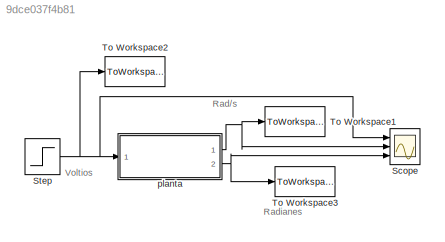
MODEL slx_9dce037f4b81
KIND model
CONFIG AbsTol = auto
CONFIG EnableMultiTasking = on
CONFIG FixedStep = auto
CONFIG InitFcn = %% Declaración de variables para sistema dinámico rotacional accionado por motor, conectado a través de banda elástica. \n% Como referencia se pueden ver las dos fuentes a continuación:\n% Ver: http://ctms.engin.umich.edu/CTMS/index.php?example=MotorSpeed&section=SystemModeling\n% Ver: https://www.researchgate.net/profile/Ibraheem_Ibraheem3/post/Experiments_are_presented_assuming_nonlinear_friction_h...<+1962ch>
CONFIG MaxStep = auto
CONFIG MinStep = auto
CONFIG RelTol = 1e-3
CONFIG SampleTimeConstraint = Unconstrained
CONFIG SolverName = ode45
CONFIG StartTime = 0.0
CONFIG StopTime = 2.8
BLOCK [Scope] Scope
  Floating = off
  NumInputPorts = 3
  Ports = [3]
  ScopeSpecificationString = Simulink.scopes.TimeScopeBlockCfg('CurrentConfiguration', extmgr.ConfigurationSet(extmgr.Configuration('Core','General UI',true),extmgr.Configuration('Core','Source UI',true),extmgr.Configuration('Sources','WiredSimulink',true,'DataLoggingMaxPoints','5000000','DataLoggingLimitDataPoints',true,'DataLoggingSaveFormat','Array','DataLoggingDecimation','1','DataLoggingDecimateData',true),extmgr.Configu...<+3406ch>
BLOCK [Step] Step
  After = 3
  SampleTime = 0
BLOCK [ToWorkspace] To Workspace1
  FixptAsFi = on
  MaxDataPoints = inf
  Ports = [1]
  SampleTime = -1
  SaveFormat = Timeseries
  VariableName = Velocidad01
BLOCK [ToWorkspace] To Workspace2
  FixptAsFi = on
  MaxDataPoints = inf
  Ports = [1]
  SampleTime = -1
  SaveFormat = Timeseries
  VariableName = voltaje01
BLOCK [ToWorkspace] To Workspace3
  FixptAsFi = on
  MaxDataPoints = inf
  Ports = [1]
  SampleTime = -1
  SaveFormat = Timeseries
  VariableName = Posicion01
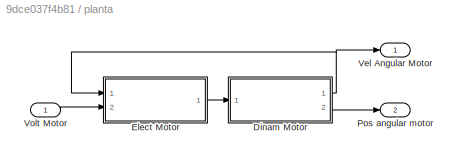
BLOCK [SubSystem] planta
  Ports = [1, 2]
  RequestExecContextInheritance = off
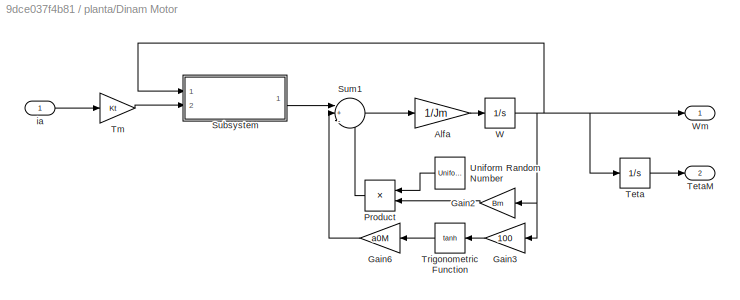
BLOCK [SubSystem] planta/Dinam Motor
  Ports = [1, 2]
  RequestExecContextInheritance = off
BLOCK [Gain] planta/Dinam Motor/Alfa
  Gain = 1/Jm
BLOCK [Gain] planta/Dinam Motor/Gain2
  Gain = Bm
BLOCK [Gain] planta/Dinam Motor/Gain3
  Gain = 100
BLOCK [Gain] planta/Dinam Motor/Gain6
  Gain = a0M
BLOCK [Product] planta/Dinam Motor/Product
  NameLocation = top
  Ports = [2, 1]
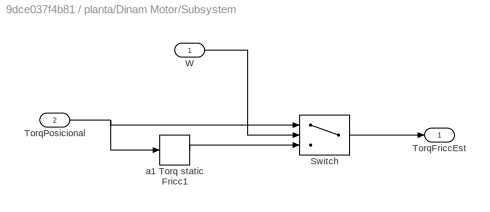
BLOCK [SubSystem] planta/Dinam Motor/Subsystem
  Ports = [2, 1]
  RequestExecContextInheritance = off
BLOCK [Switch] planta/Dinam Motor/Subsystem/Switch
  Criteria = u2 ~= 0
  InputSameDT = off
  SaturateOnIntegerOverflow = off
BLOCK [Outport] planta/Dinam Motor/Subsystem/TorqFriccEst
BLOCK [Inport] planta/Dinam Motor/Subsystem/TorqPosicional
  Port = 2
BLOCK [Inport] planta/Dinam Motor/Subsystem/W
BLOCK [DeadZone] planta/Dinam Motor/Subsystem/a1 Torq static Fricc1
  LowerValue = -a1M
  UpperValue = a1M
BLOCK [Sum] planta/Dinam Motor/Sum1
  Inputs = |+--
  Ports = [3, 1]
BLOCK [Integrator] planta/Dinam Motor/Teta
  Ports = [1, 1]
BLOCK [Outport] planta/Dinam Motor/TetaM
  Port = 2
BLOCK [Gain] planta/Dinam Motor/Tm
  Gain = Kt
BLOCK [Trigonometry] planta/Dinam Motor/Trigonometric Function
  Operator = tanh
  Ports = [1, 1]
BLOCK [UniformRandomNumber] planta/Dinam Motor/Uniform Random Number
  Maximum = 1.2
  Minimum = .8
  NameLocation = top
  SampleTime = 0.1
BLOCK [Integrator] planta/Dinam Motor/W
  Ports = [1, 1]
BLOCK [Outport] planta/Dinam Motor/Wm
BLOCK [Inport] planta/Dinam Motor/ia
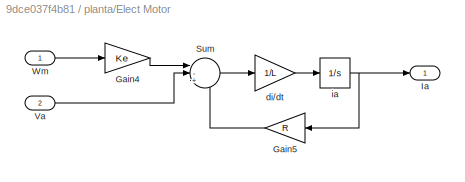
BLOCK [SubSystem] planta/Elect Motor
  Ports = [2, 1]
  RequestExecContextInheritance = off
BLOCK [Gain] planta/Elect Motor/Gain4
  Gain = Ke
BLOCK [Gain] planta/Elect Motor/Gain5
  Gain = R
BLOCK [Outport] planta/Elect Motor/Ia
BLOCK [Sum] planta/Elect Motor/Sum
  Inputs = |-+-
  Ports = [3, 1]
BLOCK [Inport] planta/Elect Motor/Va
  Port = 2
BLOCK [Inport] planta/Elect Motor/Wm
BLOCK [Gain] planta/Elect Motor/di//dt
  Gain = 1/L
BLOCK [Integrator] planta/Elect Motor/ia
  Ports = [1, 1]
BLOCK [Outport] planta/Pos angular motor
  Port = 2
BLOCK [Outport] planta/Vel Angular Motor
BLOCK [Inport] planta/Volt Motor
ANNOTATION (root): Rad/s
ANNOTATION (root): Radianes
ANNOTATION (root): Voltios
NET Step:1 -> Scope:1, To Workspace2:1, planta:1
LINE planta/Dinam Motor/Alfa:1 -> planta/Dinam Motor/W:1
LINE planta/Dinam Motor/Gain2:1 -> planta/Dinam Motor/Product:2
LINE planta/Dinam Motor/Gain3:1 -> planta/Dinam Motor/Trigonometric Function:1
LINE planta/Dinam Motor/Gain6:1 -> planta/Dinam Motor/Sum1:2
LINE planta/Dinam Motor/Product:1 -> planta/Dinam Motor/Sum1:3
LINE planta/Dinam Motor/Subsystem/Switch:1 -> planta/Dinam Motor/Subsystem/TorqFriccEst:1
NET planta/Dinam Motor/Subsystem/TorqPosicional:1 -> planta/Dinam Motor/Subsystem/Switch:1, planta/Dinam Motor/Subsystem/a1 Torq static Fricc1:1
LINE planta/Dinam Motor/Subsystem/W:1 -> planta/Dinam Motor/Subsystem/Switch:2
LINE planta/Dinam Motor/Subsystem/a1 Torq static Fricc1:1 -> planta/Dinam Motor/Subsystem/Switch:3
LINE planta/Dinam Motor/Subsystem:1 -> planta/Dinam Motor/Sum1:1
LINE planta/Dinam Motor/Sum1:1 -> planta/Dinam Motor/Alfa:1
LINE planta/Dinam Motor/Teta:1 -> planta/Dinam Motor/TetaM:1
LINE planta/Dinam Motor/Tm:1 -> planta/Dinam Motor/Subsystem:2
LINE planta/Dinam Motor/Trigonometric Function:1 -> planta/Dinam Motor/Gain6:1
LINE planta/Dinam Motor/Uniform Random Number:1 -> planta/Dinam Motor/Product:1
NET planta/Dinam Motor/W:1 -> planta/Dinam Motor/Gain2:1, planta/Dinam Motor/Gain3:1, planta/Dinam Motor/Subsystem:1, planta/Dinam Motor/Teta:1, planta/Dinam Motor/Wm:1
LINE planta/Dinam Motor/ia:1 -> planta/Dinam Motor/Tm:1
NET planta/Dinam Motor:1 -> planta/Elect Motor:1, planta/Vel Angular Motor:1
LINE planta/Dinam Motor:2 -> planta/Pos angular motor:1
LINE planta/Elect Motor/Gain4:1 -> planta/Elect Motor/Sum:1
LINE planta/Elect Motor/Gain5:1 -> planta/Elect Motor/Sum:3
LINE planta/Elect Motor/Sum:1 -> planta/Elect Motor/di//dt:1
LINE planta/Elect Motor/Va:1 -> planta/Elect Motor/Sum:2
LINE planta/Elect Motor/Wm:1 -> planta/Elect Motor/Gain4:1
LINE planta/Elect Motor/di//dt:1 -> planta/Elect Motor/ia:1
NET planta/Elect Motor/ia:1 -> planta/Elect Motor/Gain5:1, planta/Elect Motor/Ia:1
LINE planta/Elect Motor:1 -> planta/Dinam Motor:1
LINE planta/Volt Motor:1 -> planta/Elect Motor:2
NET planta:1 -> Scope:2, To Workspace1:1
NET planta:2 -> Scope:3, To Workspace3:1
note: NET lines group one-source signal fan-out (src -> all destinations, sorted); 1:1 wires keep LINE
